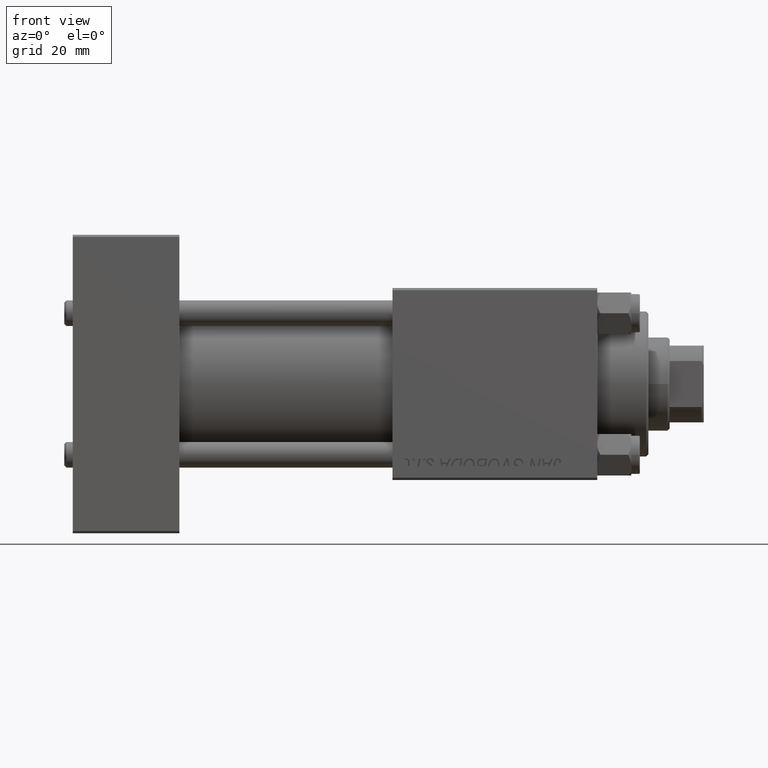
[diagram: clean part render]
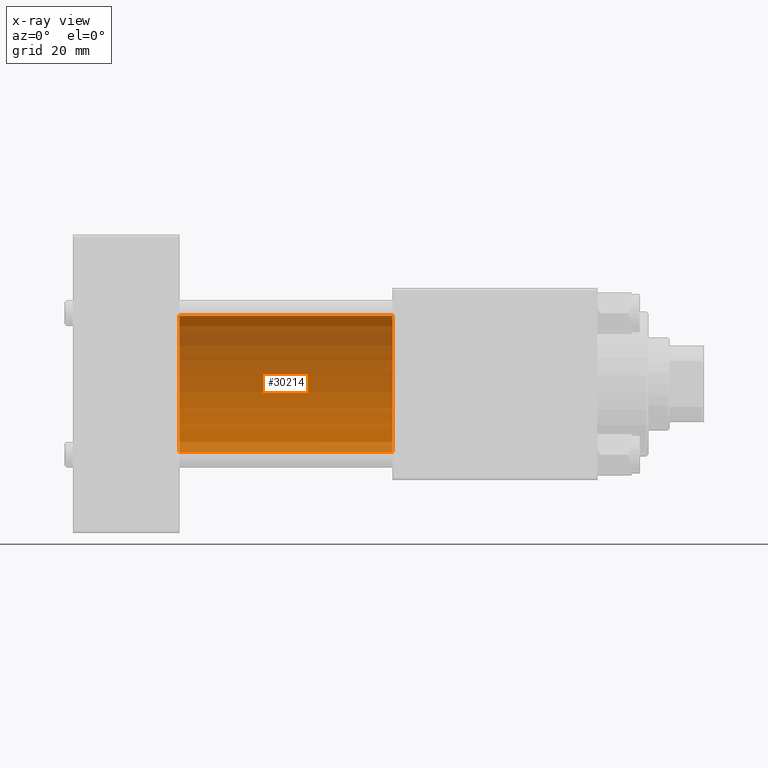
[diagram: x-ray — body ghosted, one internal face saturated and labeled with its STEP entity id]
A machine part, front view, then the same camera in x-ray: the body is ghosted and one INTERNAL B-rep face — a face not visible from any outside direction — is saturated and labeled: STEP entity #30214.
In plain terms, the highlighted cylindrical surface (partial cylindrical patch) has radius 16 mm, axis along (-1, -0, -0).
Its self-contained STEP definition (entity closure, byte-faithful):
#284 = CARTESIAN_POINT ( 'NONE',  ( 25.00000000000000000, -6.426503353294456087E-16, -16.00000000000000000 ) ) ;
#859 = CARTESIAN_POINT ( 'NONE',  ( 25.00000000000000000, -2.602085213965210642E-15, 16.00000000000000000 ) ) ;
#1427 = AXIS2_PLACEMENT_3D ( 'NONE', #25108, #16793, #40753 ) ;
#2026 = DIRECTION ( 'NONE',  ( 0.000000000000000000, 0.000000000000000000, -1.000000000000000000 ) ) ;
#3054 = CARTESIAN_POINT ( 'NONE',  ( 75.00000000000001421, -2.602085213965210642E-15, 0.000000000000000000 ) ) ;
#6104 = VERTEX_POINT ( 'NONE', #859 ) ;
#8659 = CARTESIAN_POINT ( 'NONE',  ( 75.00000000000001421, -2.602085213965210642E-15, 16.00000000000000000 ) ) ;
#9380 = LINE ( 'NONE', #33327, #35969 ) ;
#11938 = EDGE_CURVE ( 'NONE', #27912, #27889, #9380, .T. ) ;
#14005 = VECTOR ( 'NONE', #34424, 1000.000000000000000 ) ;
#16793 = DIRECTION ( 'NONE',  ( 1.000000000000000000, 0.000000000000000000, 0.000000000000000000 ) ) ;
#17359 = ORIENTED_EDGE ( 'NONE', *, *, #23857, .F. ) ;
#18970 = CYLINDRICAL_SURFACE ( 'NONE', #39545, 16.00000000000000000 ) ;
#19942 = ORIENTED_EDGE ( 'NONE', *, *, #11938, .F. ) ;
#20081 = CIRCLE ( 'NONE', #21699, 16.00000000000000000 ) ;
#21699 = AXIS2_PLACEMENT_3D ( 'NONE', #44955, #25745, #2026 ) ;
#23857 = EDGE_CURVE ( 'NONE', #27889, #6104, #20081, .T. ) ;
#24070 = LINE ( 'NONE', #8659, #14005 ) ;
#25108 = CARTESIAN_POINT ( 'NONE',  ( 75.00000000000001421, -2.602085213965210642E-15, 0.000000000000000000 ) ) ;
#25745 = DIRECTION ( 'NONE',  ( 1.000000000000000000, 0.000000000000000000, 0.000000000000000000 ) ) ;
#27889 = VERTEX_POINT ( 'NONE', #284 ) ;
#27912 = VERTEX_POINT ( 'NONE', #29892 ) ;
#28024 = CIRCLE ( 'NONE', #1427, 16.00000000000000000 ) ;
#28043 = CARTESIAN_POINT ( 'NONE',  ( 75.00000000000001421, -2.602085213965210642E-15, 16.00000000000000000 ) ) ;
#29718 = ORIENTED_EDGE ( 'NONE', *, *, #32263, .T. ) ;
#29820 = FACE_OUTER_BOUND ( 'NONE', #37222, .T. ) ;
#29892 = CARTESIAN_POINT ( 'NONE',  ( 75.00000000000001421, -6.426503353294456087E-16, -16.00000000000000000 ) ) ;
#30214 = ADVANCED_FACE ( 'NONE', ( #29820 ), #18970, .F. ) ;
#32263 = EDGE_CURVE ( 'NONE', #42141, #6104, #24070, .T. ) ;
#33327 = CARTESIAN_POINT ( 'NONE',  ( 75.00000000000001421, -6.426503353294456087E-16, -16.00000000000000000 ) ) ;
#34424 = DIRECTION ( 'NONE',  ( -1.000000000000000000, -0.000000000000000000, -0.000000000000000000 ) ) ;
#35969 = VECTOR ( 'NONE', #44965, 1000.000000000000000 ) ;
#37222 = EDGE_LOOP ( 'NONE', ( #19942, #49408, #29718, #17359 ) ) ;
#39545 = AXIS2_PLACEMENT_3D ( 'NONE', #3054, #45756, #48548 ) ;
#40753 = DIRECTION ( 'NONE',  ( 0.000000000000000000, 0.000000000000000000, -1.000000000000000000 ) ) ;
#40949 = EDGE_CURVE ( 'NONE', #27912, #42141, #28024, .T. ) ;
#42141 = VERTEX_POINT ( 'NONE', #28043 ) ;
#44955 = CARTESIAN_POINT ( 'NONE',  ( 25.00000000000000000, -2.602085213965210642E-15, 0.000000000000000000 ) ) ;
#44965 = DIRECTION ( 'NONE',  ( -1.000000000000000000, -0.000000000000000000, -0.000000000000000000 ) ) ;
#45756 = DIRECTION ( 'NONE',  ( -1.000000000000000000, -0.000000000000000000, -0.000000000000000000 ) ) ;
#48548 = DIRECTION ( 'NONE',  ( 0.000000000000000000, 0.000000000000000000, 1.000000000000000000 ) ) ;
#49408 = ORIENTED_EDGE ( 'NONE', *, *, #40949, .T. ) ;